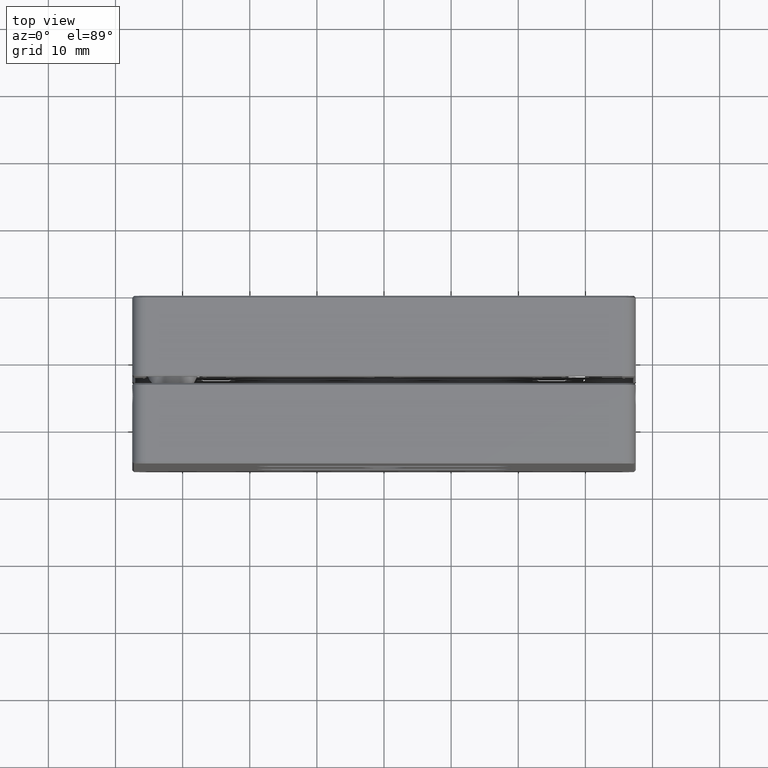
[diagram: clean part render]
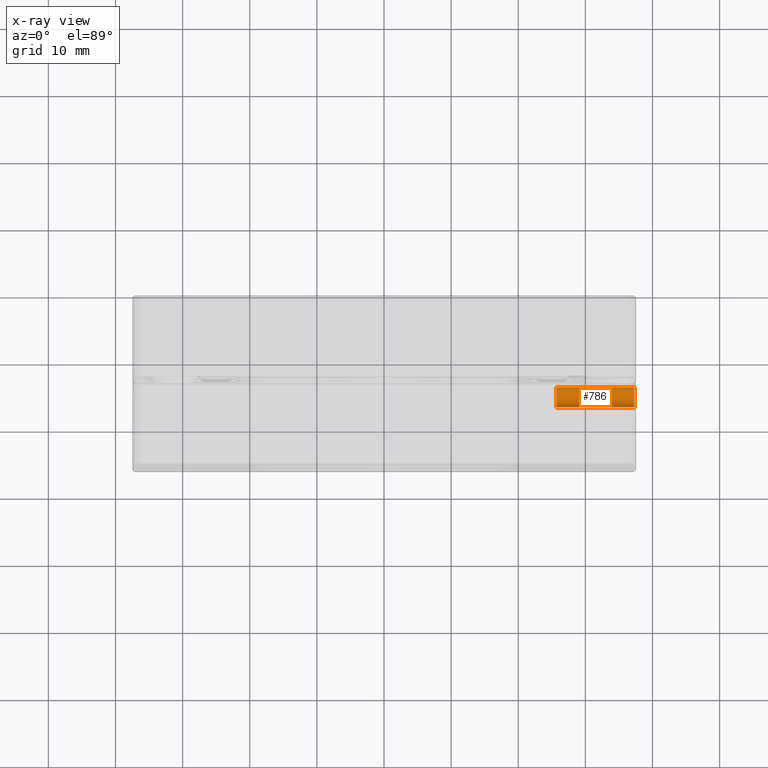
[diagram: x-ray — body ghosted, one internal face saturated and labeled with its STEP entity id]
A machine part, top view, then the same camera in x-ray: the body is ghosted and one INTERNAL B-rep face — a face not visible from any outside direction — is saturated and labeled: STEP entity #786.
In plain terms, the highlighted cylindrical surface (edge-blend (fillet) strip) has radius 1.5 mm, axis along (-1, -0, -0).
Its self-contained STEP definition (entity closure, byte-faithful):
#109 = DIRECTION ( 'NONE',  ( -1.000000000000000000, -1.030141408653844993E-29, -1.850371707708544273E-16 ) ) ;
#250 = EDGE_CURVE ( 'NONE', #2530, #6798, #3420, .T. ) ;
#265 = ORIENTED_EDGE ( 'NONE', *, *, #3700, .F. ) ;
#365 = AXIS2_PLACEMENT_3D ( 'NONE', #4171, #5589, #794 ) ;
#786 = ADVANCED_FACE ( 'NONE', ( #7766 ), #5315, .T. ) ;
#794 = DIRECTION ( 'NONE',  ( 0.0000000000000000000, -0.9897086263678045448, 0.1430972917044678328 ) ) ;
#1058 = DIRECTION ( 'NONE',  ( -1.000000000000000000, -1.030141408653844993E-29, -1.850371707708544273E-16 ) ) ;
#1089 = VECTOR ( 'NONE', #2960, 1000.000000000000000 ) ;
#1592 = DIRECTION ( 'NONE',  ( 0.0000000000000000000, -0.9897086263678041007, 0.1430972917044701365 ) ) ;
#1933 = CARTESIAN_POINT ( 'NONE',  ( 37.29999999999999005, 5.484562939551707039, 28.11035406244329593 ) ) ;
#2220 = CARTESIAN_POINT ( 'NONE',  ( 25.69999999999998863, 2.515437060448293405, 28.53964593755670265 ) ) ;
#2530 = VERTEX_POINT ( 'NONE', #2220 ) ;
#2960 = DIRECTION ( 'NONE',  ( -1.000000000000000000, -1.030141408653844993E-29, -1.850371707708544273E-16 ) ) ;
#3027 = CARTESIAN_POINT ( 'NONE',  ( 37.29999999999999005, 4.000000000000000000, 28.32499999999999929 ) ) ;
#3420 = CIRCLE ( 'NONE', #365, 1.500000000000000444 ) ;
#3609 = VERTEX_POINT ( 'NONE', #8507 ) ;
#3700 = EDGE_CURVE ( 'NONE', #8620, #6798, #5651, .T. ) ;
#4171 = CARTESIAN_POINT ( 'NONE',  ( 25.69999999999998863, 4.000000000000000000, 28.32499999999999929 ) ) ;
#4290 = AXIS2_PLACEMENT_3D ( 'NONE', #3027, #4313, #1592 ) ;
#4299 = CARTESIAN_POINT ( 'NONE',  ( 25.69999999999998863, 5.484562939551707039, 28.11035406244329593 ) ) ;
#4313 = DIRECTION ( 'NONE',  ( -1.000000000000000000, -1.030141408653844993E-29, -1.850371707708544273E-16 ) ) ;
#4405 = CARTESIAN_POINT ( 'NONE',  ( 37.49999999999999289, 5.484562939551707039, 28.11035406244329593 ) ) ;
#4414 = ORIENTED_EDGE ( 'NONE', *, *, #6089, .T. ) ;
#4956 = CARTESIAN_POINT ( 'NONE',  ( 37.49999999999999289, 2.515437060448292961, 28.53964593755670265 ) ) ;
#5315 = CYLINDRICAL_SURFACE ( 'NONE', #8274, 1.500000000000000444 ) ;
#5589 = DIRECTION ( 'NONE',  ( 1.000000000000000000, 1.030141408653844993E-29, 1.850371707708544273E-16 ) ) ;
#5651 = LINE ( 'NONE', #4405, #7570 ) ;
#5849 = CIRCLE ( 'NONE', #4290, 1.500000000000000666 ) ;
#6089 = EDGE_CURVE ( 'NONE', #8620, #3609, #5849, .T. ) ;
#6122 = EDGE_CURVE ( 'NONE', #3609, #2530, #8838, .T. ) ;
#6459 = ORIENTED_EDGE ( 'NONE', *, *, #6122, .T. ) ;
#6526 = ORIENTED_EDGE ( 'NONE', *, *, #250, .T. ) ;
#6798 = VERTEX_POINT ( 'NONE', #4299 ) ;
#6919 = DIRECTION ( 'NONE',  ( 0.0000000000000000000, 0.9897086263678045448, -0.1430972917044678328 ) ) ;
#7570 = VECTOR ( 'NONE', #1058, 1000.000000000000000 ) ;
#7631 = CARTESIAN_POINT ( 'NONE',  ( 37.49999999999999289, 4.000000000000000000, 28.32499999999999929 ) ) ;
#7766 = FACE_OUTER_BOUND ( 'NONE', #8324, .T. ) ;
#8274 = AXIS2_PLACEMENT_3D ( 'NONE', #7631, #109, #6919 ) ;
#8324 = EDGE_LOOP ( 'NONE', ( #4414, #6459, #6526, #265 ) ) ;
#8507 = CARTESIAN_POINT ( 'NONE',  ( 37.29999999999999005, 2.515437060448293405, 28.53964593755670265 ) ) ;
#8620 = VERTEX_POINT ( 'NONE', #1933 ) ;
#8838 = LINE ( 'NONE', #4956, #1089 ) ;